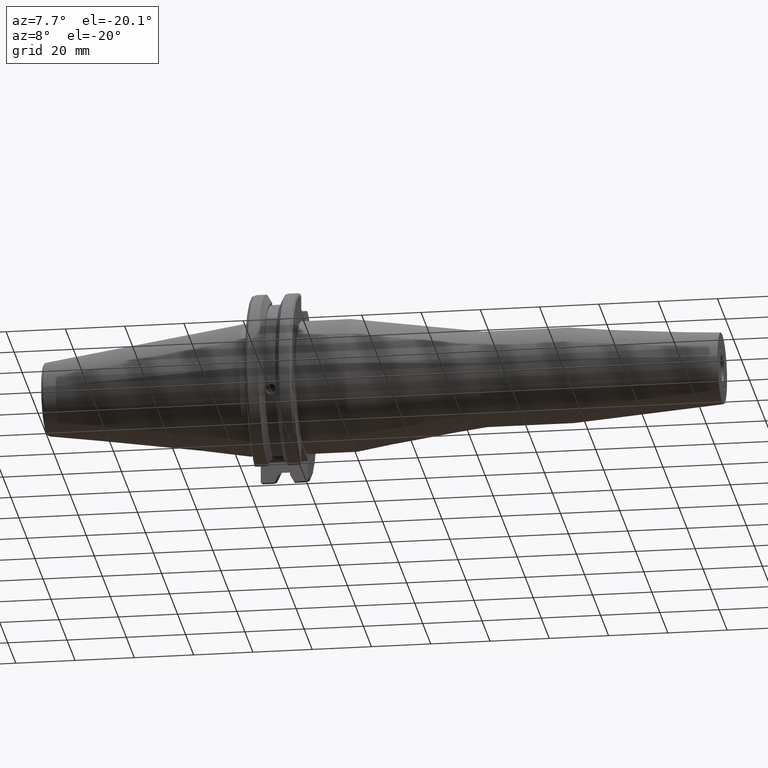
[diagram: clean part render]
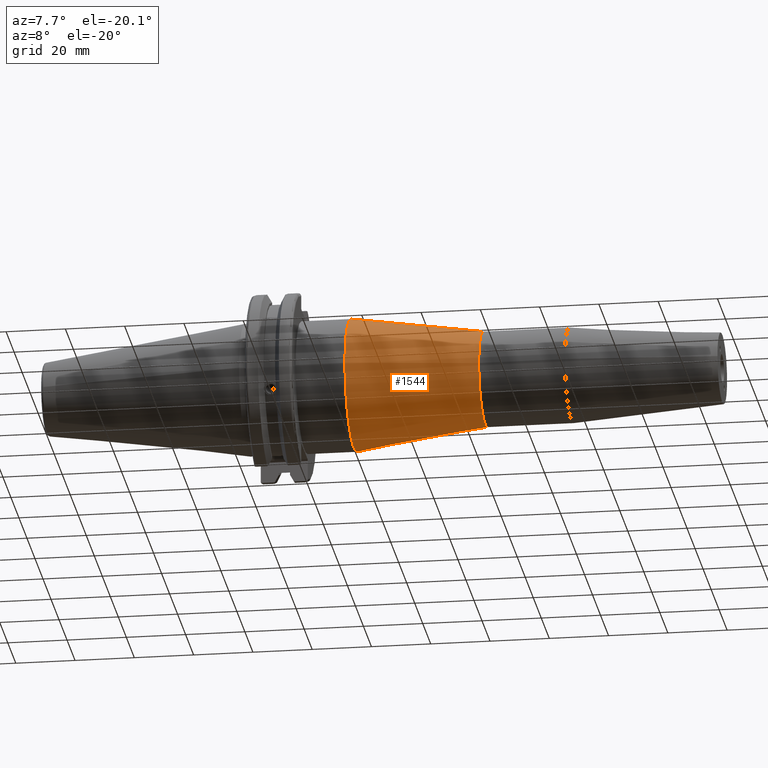
[diagram: same view with one face highlighted and labeled with its STEP entity id]
A machine part, auxiliary view. The second image highlights one B-rep face of the part: STEP entity #1544.
In plain terms, the highlighted conical surface has half-angle 8 deg.
Its self-contained STEP definition (entity closure, byte-faithful):
#190=FACE_OUTER_BOUND('',#288,.T.);
#288=EDGE_LOOP('',(#1102,#1103,#1104,#1105));
#387=LINE('',#2439,#487);
#487=VECTOR('',#1913,19.1125);
#589=CIRCLE('',#1675,22.225);
#591=CIRCLE('',#1678,16.);
#668=VERTEX_POINT('',#2431);
#670=VERTEX_POINT('',#2437);
#834=EDGE_CURVE('',#668,#668,#589,.T.);
#837=EDGE_CURVE('',#670,#670,#591,.T.);
#838=EDGE_CURVE('',#670,#668,#387,.T.);
#1102=ORIENTED_EDGE('',*,*,#837,.F.);
#1103=ORIENTED_EDGE('',*,*,#838,.T.);
#1104=ORIENTED_EDGE('',*,*,#834,.T.);
#1105=ORIENTED_EDGE('',*,*,#838,.F.);
#1517=CONICAL_SURFACE('',#1677,19.1125,0.139626340159547);
#1544=ADVANCED_FACE('',(#190),#1517,.T.);
#1675=AXIS2_PLACEMENT_3D('',#2432,#1904,#1905);
#1677=AXIS2_PLACEMENT_3D('',#2436,#1909,#1910);
#1678=AXIS2_PLACEMENT_3D('',#2438,#1911,#1912);
#1904=DIRECTION('center_axis',(1.,0.,0.));
#1905=DIRECTION('ref_axis',(0.,0.,-1.));
#1909=DIRECTION('center_axis',(-1.,0.,0.));
#1910=DIRECTION('ref_axis',(0.,1.,0.));
#1911=DIRECTION('center_axis',(1.,0.,0.));
#1912=DIRECTION('ref_axis',(0.,0.,-1.));
#1913=DIRECTION('',(-0.99026806874157,-0.139173100960066,-1.70437892618156E-17));
#2431=CARTESIAN_POINT('',(35.7068234781583,-22.225,-2.72177751110499E-15));
#2432=CARTESIAN_POINT('Origin',(35.7068234781583,0.,0.));
#2436=CARTESIAN_POINT('Origin',(57.8534117390792,0.,0.));
#2437=CARTESIAN_POINT('',(80.,-16.,-1.95943487863577E-15));
#2438=CARTESIAN_POINT('Origin',(80.,0.,0.));
#2439=CARTESIAN_POINT('',(57.8534117390792,-19.1125,-2.34060619487038E-15));